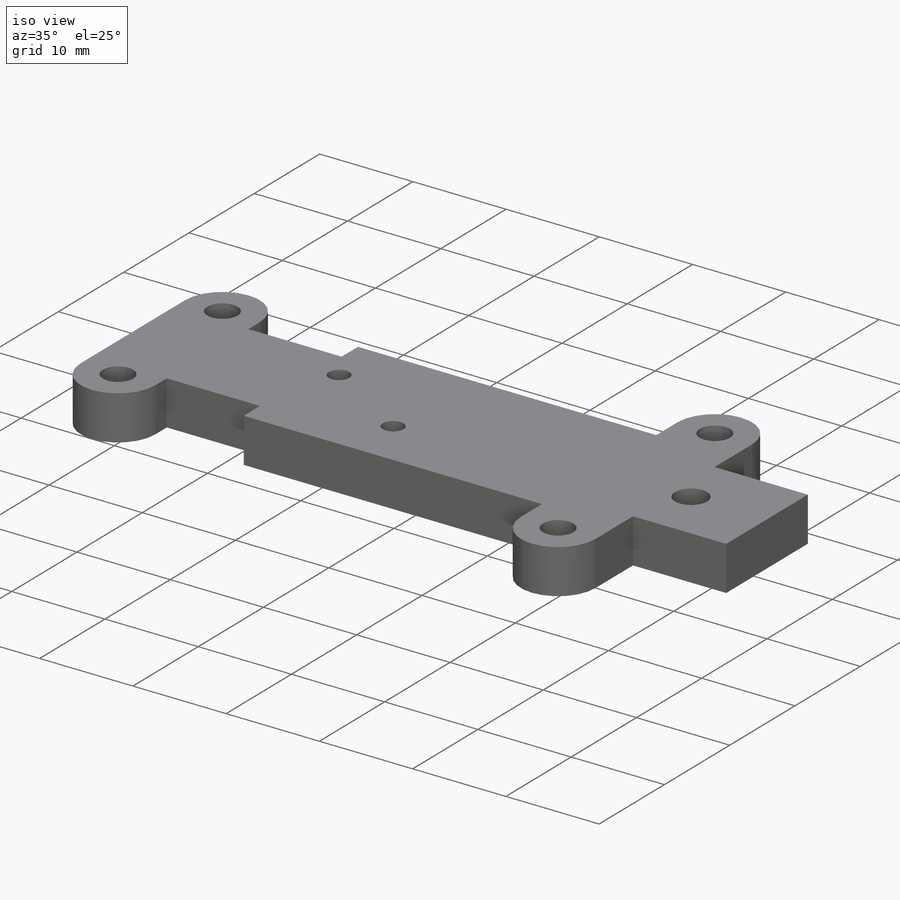
[diagram: iso view]
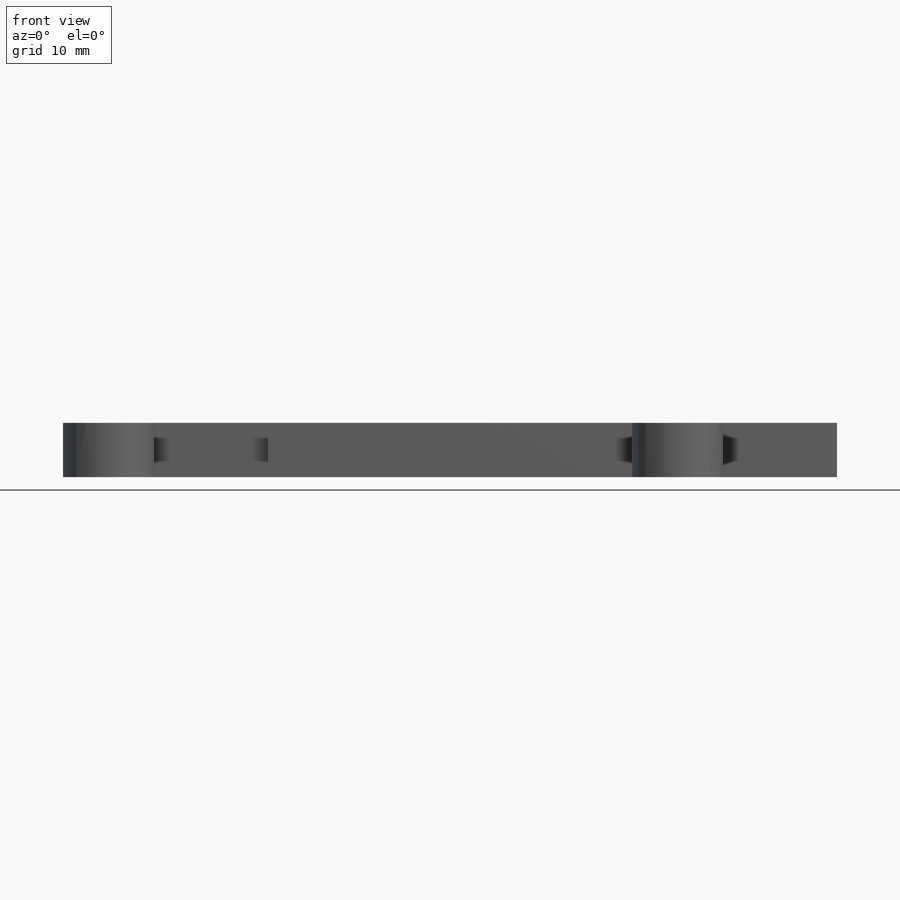
[diagram: front view]
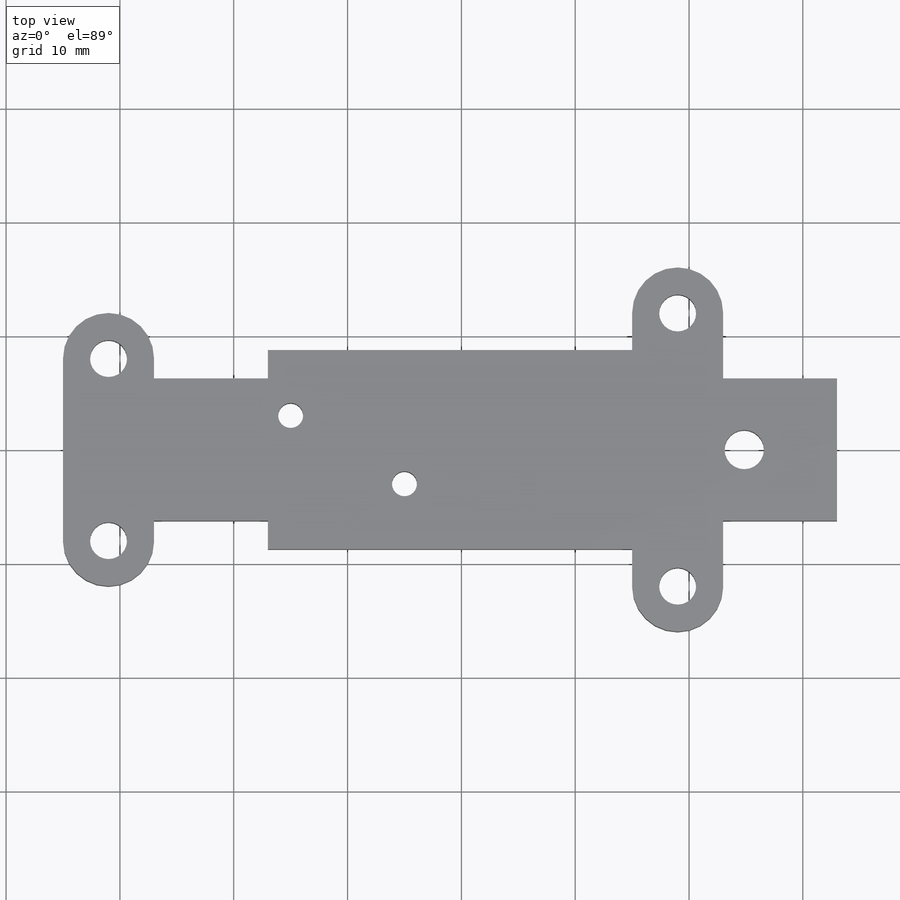
[diagram: top view]
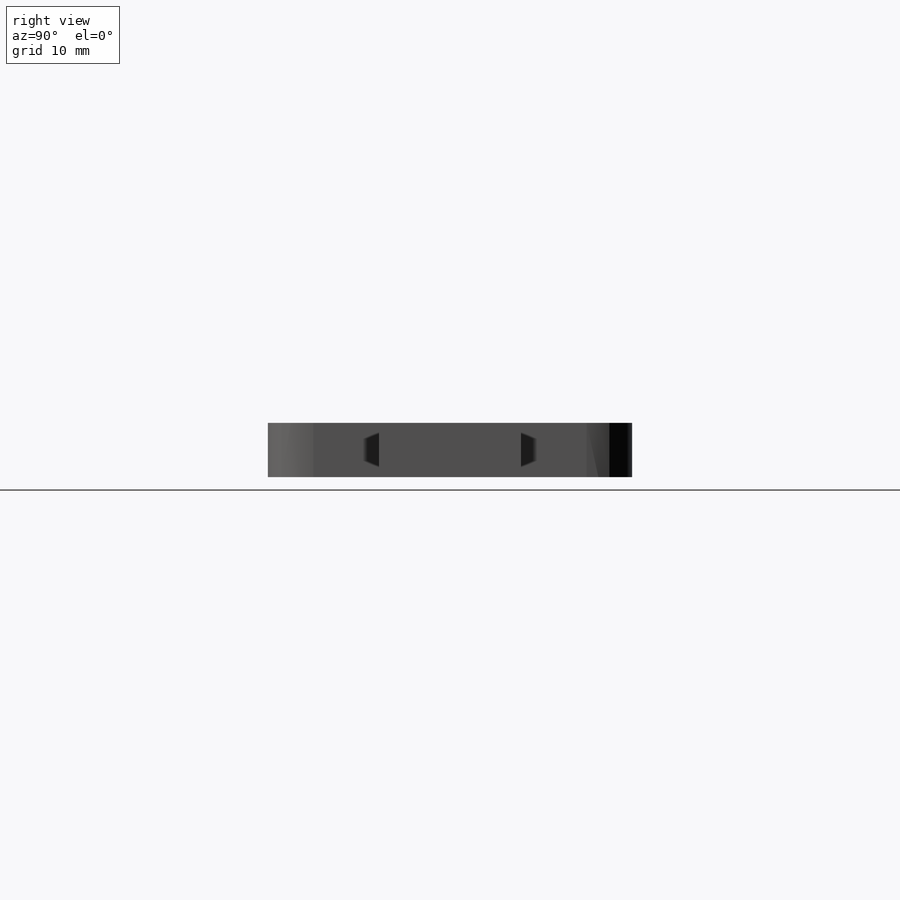
[diagram: right view]
SOLIDWORKS PART (.sldprt)
format: sldprt  version: not decoded by parser v0  size: 224,768 bytes
history: native  units: mm
features: sketch x4, material x1, extrude x1, mirror x1, cut_extrude x1, hole x1, thread x1 (+16 scaffold rows collapsed)
feature tree (26):
  scaffold x16  (default folders/planes/origin — collapsed)
  material  "Material <not specified>"
  sketch  "Sketch1"  dims[c1.D5=2.2mm c1.D7=4.0mm c1.D10=3.25mm c1.D1=3.0mm c1.D2=3.0mm c1.D3=5.0mm c1.D4=5.0mm c1.D6=32.0mm c2.D7=25.0mm c2.D8=46.0mm c2.D9=2.5mm c2.D10=10.0mm c2.D11=50.0mm c2.D12=7.0mm c2.D13=6.25mm c3.D9=2.5mm c3.D11=40.0mm c3.D14=10.0mm c3.D6=10.0mm c3.D8=8.0mm c4.D11=40.0mm c4.D15=12.0mm]
  extrude  "Boss-Extrude1"  Depth=4.7625mm
  mirror  "Mirror1"
  sketch  "Sketch6"  dims[D1=2.2mm D2=3.0mm D3=3.0mm D4=5.0mm D5=5.0mm]
  cut_extrude  "Cut-Extrude3"  [1 undecoded]
  hole  "#8-32 Tapped Hole1"  Diameter=3.4544mm Depth=12.29mm
  sketch  "Sketch4"  dims[D1=34.85mm]
  sketch  "Sketch3"  dims[hole-wizard template sketch: 47 standard entries collapsed; hole parameters kept: c15.Tap Drill Depth=12.29mm c15.D3=~14.816244mm c15.Drill Angle=118.0deg]
  thread  "Hole Thread1"  Diameter=3.175mm  [1 undecoded]
decode coverage: 7 of 9 modeling features carry decoded parameters
note: ~ marks probable driven/reference dimensions
note: 2 parameter values undecoded
note: suppression state not decoded; provenance and decode notes live in map.json
